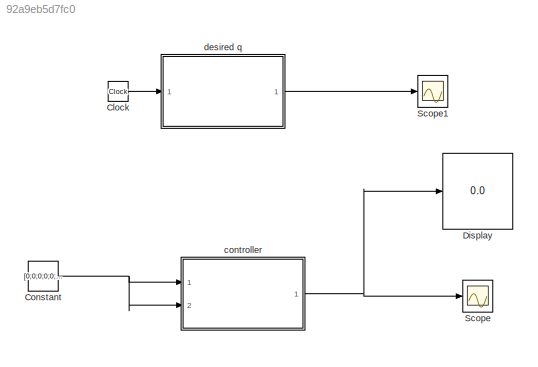
MODEL slx_92a9eb5d7fc0
KIND model
BLOCK [Clock] Clock
BLOCK [Constant] Constant
  Value = [0;0;0;0;0;0;0;0]
BLOCK [Display] Display
  Decimation = 1
  Ports = [1]
BLOCK [Scope] Scope
  Floating = off
  NumInputPorts = 1
  Ports = [1]
  ShowLegends = off
BLOCK [Scope] Scope1
  Floating = off
  NumInputPorts = 1
  Ports = [1]
  SaveName = ScopeData1
  ShowLegends = off
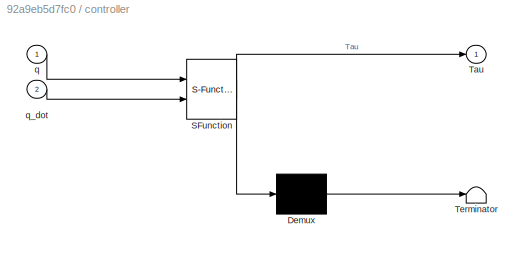
BLOCK [SubSystem] controller
  ErrorFcn = Stateflow.Translate.translate
  PermitHierarchicalResolution = ExplicitOnly
  Ports = [2, 1]
  RequestExecContextInheritance = off
  SFBlockType = MATLAB Function
  TreatAsAtomicUnit = on
BLOCK [Demux] controller/ Demux 
  Outputs = 1
  Ports = [1, 1]
BLOCK [S-Function] controller/ SFunction 
  EnableBusSupport = on
  FunctionName = sf_sfun
  PortCounts = [2 2]
  Ports = [2, 2]
  Tag = Stateflow S-Function test 1
BLOCK [Terminator] controller/ Terminator 
BLOCK [Outport] controller/Tau
  IconDisplay = Port number
BLOCK [Inport] controller/q
  IconDisplay = Port number
BLOCK [Inport] controller/q_dot
  IconDisplay = Port number
  Port = 2
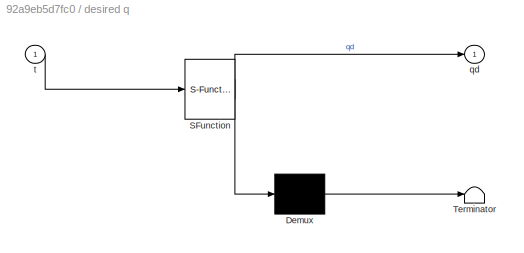
BLOCK [SubSystem] desired q
  ErrorFcn = Stateflow.Translate.translate
  PermitHierarchicalResolution = ExplicitOnly
  Ports = [1, 1]
  RequestExecContextInheritance = off
  SFBlockType = MATLAB Function
  TreatAsAtomicUnit = on
BLOCK [Demux] desired q/ Demux 
  Outputs = 1
  Ports = [1, 1]
BLOCK [S-Function] desired q/ SFunction 
  EnableBusSupport = on
  FunctionName = sf_sfun
  PortCounts = [1 2]
  Ports = [1, 2]
  Tag = Stateflow S-Function test 2
BLOCK [Terminator] desired q/ Terminator 
BLOCK [Outport] desired q/qd
  IconDisplay = Port number
BLOCK [Inport] desired q/t
  IconDisplay = Port number
LINE Clock:1 -> desired q:1
NET Constant:1 -> controller:1, controller:2
NET controller:1 -> Display:1, Scope:1
LINE desired q:1 -> Scope1:1
note: NET lines group one-source signal fan-out (src -> all destinations, sorted); 1:1 wires keep LINE
CHART controller states=1 transitions=1
  STATE_LABEL 'eML_blk_kernel()'
  STATE_LABEL 'SCRIPT:\nfunction Tau= fcn(q,q_dot)\n\ntheta_1= q(3);\ntheta_2= q(4);\n\ntheta_dot1=q(7);\ntheta_dot2=q(8);\n\nx_dotdot=q_dot(5);\ny_dotdot=q_dot(6);\ntheta_dotdot1=q_dot(7);\ntheta_dotdot2=q_dot(8);\n\n% to avoid singularity on the docked mechanism:\n\nif abs(theta_1-theta_2)<1e-2\n    if theta_dot2>=0\n     theta_2=theta_1+0.01;\n    else\n     theta_2=theta_1-0.01;\n    end\nend\n\n%-----------------------------------...<+114ch>'
CHART desired q states=1 transitions=1
  STATE_LABEL 'eML_blk_kernel()'
  STATE_LABEL 'SCRIPT:\nfunction qd= fcn(t)\n\nqd=q_desired(t)'
